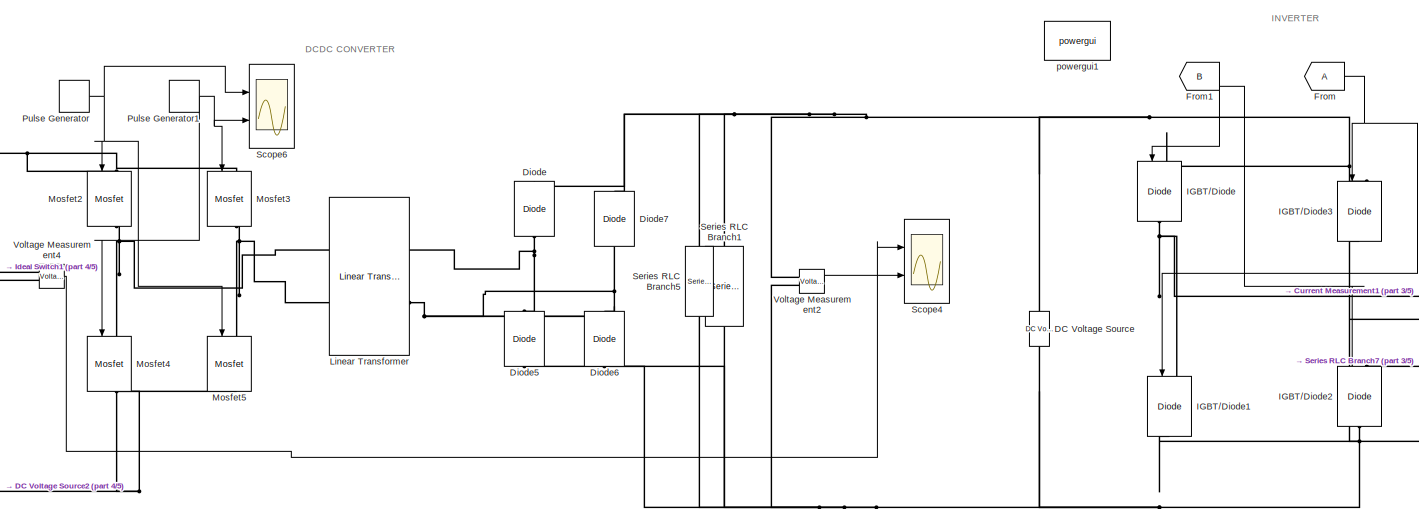
[diagram: root canvas - part 1/5, top center region]
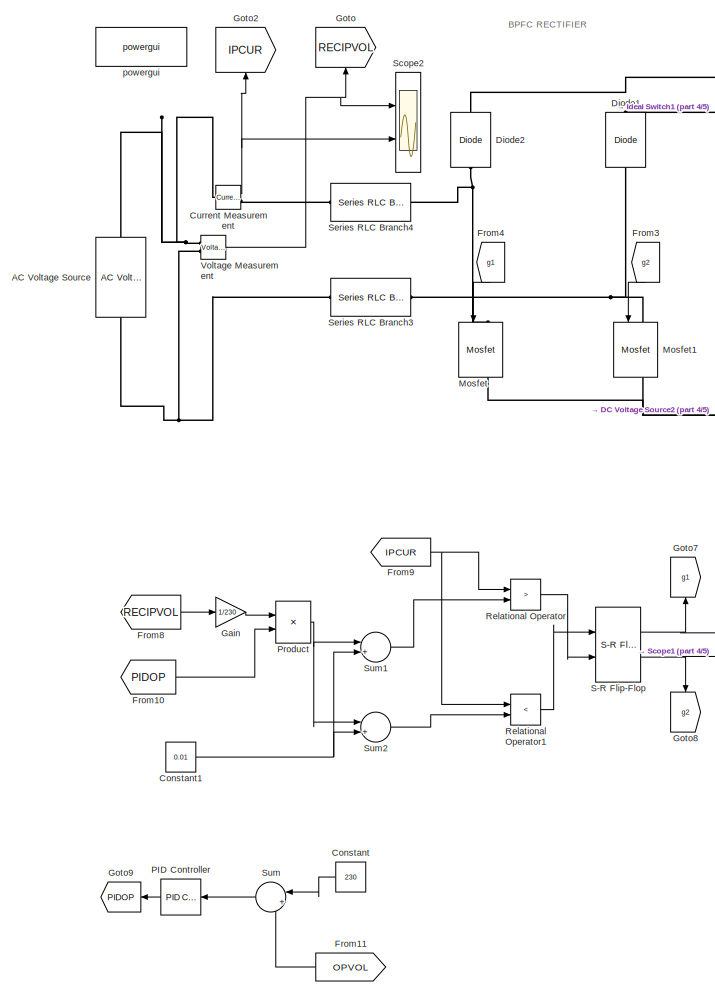
[diagram: root canvas - part 2/5, left side, full height]
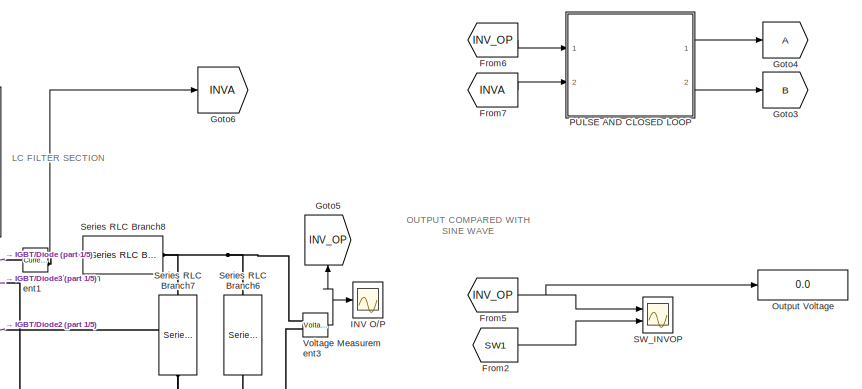
[diagram: root canvas - part 3/5, top right region]
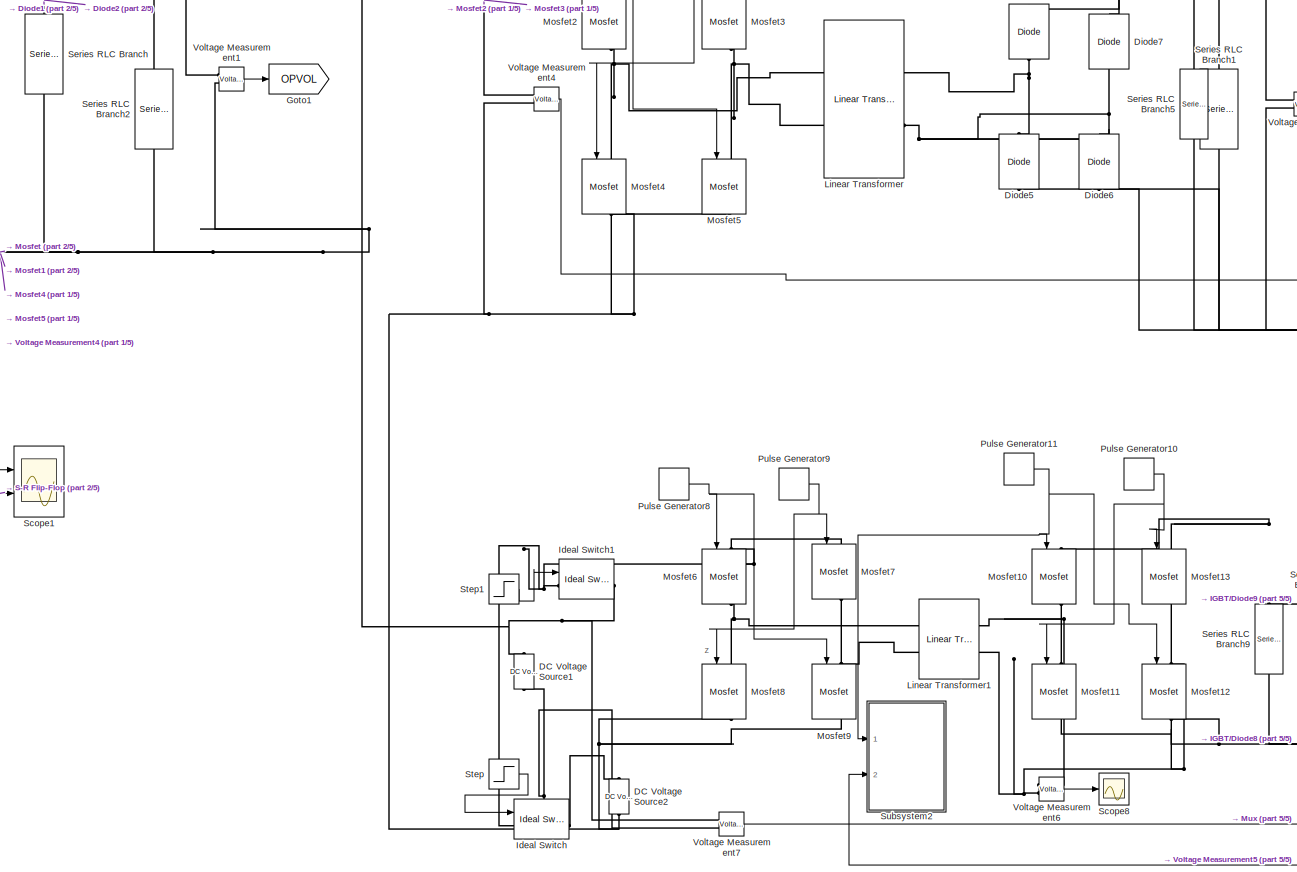
[diagram: root canvas - part 4/5, central region]
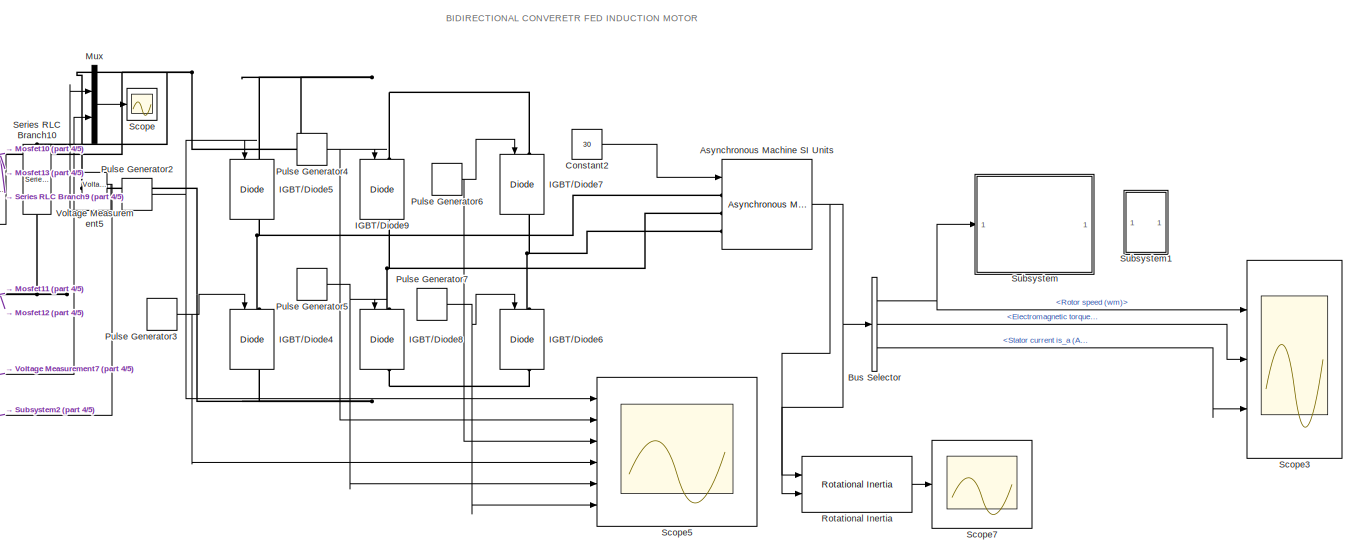
[diagram: root canvas - part 5/5, bottom right region]
MODEL slx_6d3afb806fe5
KIND model
CONFIG AbsTol = auto
CONFIG EnableMultiTasking = on
CONFIG FixedStep = auto
CONFIG MaxStep = auto
CONFIG MinStep = auto
CONFIG RelTol = 1e-3
CONFIG SampleTimeConstraint = Unconstrained
CONFIG Solver = ode23tb
CONFIG SolverName = ode23tb
CONFIG StartTime = 0.0
CONFIG StopTime = 1
BLOCK [Reference] AC Voltage Source  REF=powerlib/Electrical
Sources/AC Voltage Source
  Ports = [0, 0, 0, 0, 0, 1, 1]
  SourceBlock = powerlib/Electrical\nSources/AC Voltage Source
  SourceProductBaseCode = PS
  SourceProductName = Simscape Power Systems
  SourceType = AC Voltage Source
BLOCK [Reference] Asynchronous Machine SI Units  REF=powerlib/Machines/Asynchronous Machine
SI Units
  Ports = [1, 1, 0, 0, 0, 3]
  SourceBlock = powerlib/Machines/Asynchronous Machine\nSI Units
  SourceProductBaseCode = PS
  SourceProductName = Simscape Electrical
  SourceType = Asynchronous Machine
BLOCK [BusSelector] Bus Selector
  OutputAsBus = off
  OutputSignals = Mechanical.Rotor speed (wm),Mechanical.Electromagnetic torque Te (N*m),Stator measurements.Stator current is_a (A)
  Ports = [1, 3]
BLOCK [Constant] Constant
  Value = 230
BLOCK [Constant] Constant1
  Value = 0.01
BLOCK [Constant] Constant2
  Value = 30
BLOCK [Reference] Current Measurement  REF=powerlib/Measurements/Current Measurement
  Ports = [0, 1, 0, 0, 0, 1, 1]
  SourceBlock = powerlib/Measurements/Current Measurement
  SourceProductBaseCode = PS
  SourceProductName = Simscape Power Systems
  SourceType = Current Measurement
  UserDataPersistent = on
BLOCK [Reference] Current Measurement1  REF=powerlib/Measurements/Current Measurement
  Ports = [0, 1, 0, 0, 0, 1, 1]
  SourceBlock = powerlib/Measurements/Current Measurement
  SourceProductBaseCode = PS
  SourceProductName = Simscape Power Systems
  SourceType = Current Measurement
  UserDataPersistent = on
BLOCK [Reference] DC Voltage Source  REF=powerlib/Electrical
Sources/DC Voltage Source
  Ports = [0, 0, 0, 0, 0, 1, 1]
  SourceBlock = powerlib/Electrical\nSources/DC Voltage Source
  SourceProductBaseCode = PS
  SourceProductName = Simscape Power Systems
  SourceType = DC Voltage Source
BLOCK [Reference] DC Voltage Source1  REF=powerlib/Electrical
Sources/DC Voltage Source
  Ports = [0, 0, 0, 0, 0, 1, 1]
  SourceBlock = powerlib/Electrical\nSources/DC Voltage Source
  SourceProductBaseCode = PS
  SourceProductName = Simscape Electrical
  SourceType = DC Voltage Source
BLOCK [Reference] DC Voltage Source2  REF=powerlib/Electrical
Sources/DC Voltage Source
  Ports = [0, 0, 0, 0, 0, 1, 1]
  SourceBlock = powerlib/Electrical\nSources/DC Voltage Source
  SourceProductBaseCode = PS
  SourceProductName = Simscape Electrical
  SourceType = DC Voltage Source
BLOCK [Reference] Diode  REF=powerlib/Power
Electronics/Diode
  Ports = [0, 0, 0, 0, 0, 1, 1]
  SourceBlock = powerlib/Power\nElectronics/Diode
  SourceProductBaseCode = PS
  SourceProductName = Simscape Electrical
  SourceType = Diode
BLOCK [Reference] Diode1  REF=powerlib/Power
Electronics/Diode
  Ports = [0, 0, 0, 0, 0, 1, 1]
  SourceBlock = powerlib/Power\nElectronics/Diode
  SourceProductBaseCode = PS
  SourceProductName = Simscape Power Systems
  SourceType = Diode
BLOCK [Reference] Diode2  REF=powerlib/Power
Electronics/Diode
  Ports = [0, 0, 0, 0, 0, 1, 1]
  SourceBlock = powerlib/Power\nElectronics/Diode
  SourceProductBaseCode = PS
  SourceProductName = Simscape Power Systems
  SourceType = Diode
BLOCK [Reference] Diode5  REF=powerlib/Power
Electronics/Diode
  Ports = [0, 0, 0, 0, 0, 1, 1]
  SourceBlock = powerlib/Power\nElectronics/Diode
  SourceProductBaseCode = PS
  SourceProductName = Simscape Electrical
  SourceType = Diode
BLOCK [Reference] Diode6  REF=powerlib/Power
Electronics/Diode
  Ports = [0, 0, 0, 0, 0, 1, 1]
  SourceBlock = powerlib/Power\nElectronics/Diode
  SourceProductBaseCode = PS
  SourceProductName = Simscape Electrical
  SourceType = Diode
BLOCK [Reference] Diode7  REF=powerlib/Power
Electronics/Diode
  Ports = [0, 0, 0, 0, 0, 1, 1]
  SourceBlock = powerlib/Power\nElectronics/Diode
  SourceProductBaseCode = PS
  SourceProductName = Simscape Electrical
  SourceType = Diode
BLOCK [From] From
BLOCK [From] From1
  GotoTag = B
BLOCK [From] From10
  GotoTag = PIDOP
BLOCK [From] From11
  GotoTag = OPVOL
BLOCK [From] From2
  GotoTag = SW1
BLOCK [From] From3
  GotoTag = g2
BLOCK [From] From4
  GotoTag = g1
BLOCK [From] From5
  GotoTag = INV_OP
BLOCK [From] From6
  GotoTag = INV_OP
BLOCK [From] From7
  GotoTag = INVA
BLOCK [From] From8
  GotoTag = RECIPVOL
BLOCK [From] From9
  GotoTag = IPCUR
BLOCK [Gain] Gain
  Gain = 1/230
  OutDataTypeStr = Inherit: Inherit via internal rule
  ParamDataTypeStr = Inherit: Inherit via internal rule
  SaturateOnIntegerOverflow = off
BLOCK [Goto] Goto
  GotoTag = RECIPVOL
BLOCK [Goto] Goto1
  GotoTag = OPVOL
BLOCK [Goto] Goto2
  GotoTag = IPCUR
BLOCK [Goto] Goto3
  GotoTag = B
BLOCK [Goto] Goto4
BLOCK [Goto] Goto5
  GotoTag = INV_OP
BLOCK [Goto] Goto6
  GotoTag = INVA
BLOCK [Goto] Goto7
  GotoTag = g1
BLOCK [Goto] Goto8
  GotoTag = g2
BLOCK [Goto] Goto9
  GotoTag = PIDOP
BLOCK [Reference] IGBT//Diode  REF=powerlib/Power
Electronics/IGBT//Diode
  Ports = [1, 0, 0, 0, 0, 1, 1]
  SourceBlock = powerlib/Power\nElectronics/IGBT//Diode
  SourceProductBaseCode = PS
  SourceProductName = Simscape Power Systems
  SourceType = IGBT/Diode
BLOCK [Reference] IGBT//Diode1  REF=powerlib/Power
Electronics/IGBT//Diode
  Ports = [1, 0, 0, 0, 0, 1, 1]
  SourceBlock = powerlib/Power\nElectronics/IGBT//Diode
  SourceProductBaseCode = PS
  SourceProductName = Simscape Power Systems
  SourceType = IGBT/Diode
BLOCK [Reference] IGBT//Diode2  REF=powerlib/Power
Electronics/IGBT//Diode
  Ports = [1, 0, 0, 0, 0, 1, 1]
  SourceBlock = powerlib/Power\nElectronics/IGBT//Diode
  SourceProductBaseCode = PS
  SourceProductName = Simscape Power Systems
  SourceType = IGBT/Diode
BLOCK [Reference] IGBT//Diode3  REF=powerlib/Power
Electronics/IGBT//Diode
  Ports = [1, 0, 0, 0, 0, 1, 1]
  SourceBlock = powerlib/Power\nElectronics/IGBT//Diode
  SourceProductBaseCode = PS
  SourceProductName = Simscape Power Systems
  SourceType = IGBT/Diode
BLOCK [Reference] IGBT//Diode4  REF=powerlib/Power
Electronics/IGBT//Diode
  Ports = [1, 1, 0, 0, 0, 1, 1]
  SourceBlock = powerlib/Power\nElectronics/IGBT//Diode
  SourceProductBaseCode = PS
  SourceProductName = Simscape Electrical
  SourceType = IGBT/Diode
BLOCK [Reference] IGBT//Diode5  REF=powerlib/Power
Electronics/IGBT//Diode
  Ports = [1, 1, 0, 0, 0, 1, 1]
  SourceBlock = powerlib/Power\nElectronics/IGBT//Diode
  SourceProductBaseCode = PS
  SourceProductName = Simscape Electrical
  SourceType = IGBT/Diode
BLOCK [Reference] IGBT//Diode6  REF=powerlib/Power
Electronics/IGBT//Diode
  Ports = [1, 1, 0, 0, 0, 1, 1]
  SourceBlock = powerlib/Power\nElectronics/IGBT//Diode
  SourceProductBaseCode = PS
  SourceProductName = Simscape Electrical
  SourceType = IGBT/Diode
BLOCK [Reference] IGBT//Diode7  REF=powerlib/Power
Electronics/IGBT//Diode
  Ports = [1, 1, 0, 0, 0, 1, 1]
  SourceBlock = powerlib/Power\nElectronics/IGBT//Diode
  SourceProductBaseCode = PS
  SourceProductName = Simscape Electrical
  SourceType = IGBT/Diode
BLOCK [Reference] IGBT//Diode8  REF=powerlib/Power
Electronics/IGBT//Diode
  Ports = [1, 1, 0, 0, 0, 1, 1]
  SourceBlock = powerlib/Power\nElectronics/IGBT//Diode
  SourceProductBaseCode = PS
  SourceProductName = Simscape Electrical
  SourceType = IGBT/Diode
BLOCK [Reference] IGBT//Diode9  REF=powerlib/Power
Electronics/IGBT//Diode
  Ports = [1, 1, 0, 0, 0, 1, 1]
  SourceBlock = powerlib/Power\nElectronics/IGBT//Diode
  SourceProductBaseCode = PS
  SourceProductName = Simscape Electrical
  SourceType = IGBT/Diode
BLOCK [Scope] INV O//P
  Floating = off
  NumInputPorts = 1
  Ports = [1]
  ScopeSpecificationString = Simulink.scopes.TimeScopeBlockCfg('CurrentConfiguration', extmgr.ConfigurationSet(extmgr.Configuration('Core','General UI',true),extmgr.Configuration('Core','Source UI',true),extmgr.Configuration('Sources','WiredSimulink',true,'DataLoggingVariableName','ScopeData1','DataLoggingSaveFormat','Array','DataLoggingDecimation','1','DataLoggingDecimateData',true),extmgr.Configuration('Visuals','Time Domai...<+1589ch>
BLOCK [Reference] Ideal Switch  REF=powerlib/Power
Electronics/Ideal Switch
  Ports = [1, 1, 0, 0, 0, 1, 1]
  SourceBlock = powerlib/Power\nElectronics/Ideal Switch
  SourceProductBaseCode = PS
  SourceProductName = Simscape Electrical
  SourceType = Ideal Switch
BLOCK [Reference] Ideal Switch1  REF=powerlib/Power
Electronics/Ideal Switch
  Ports = [1, 1, 0, 0, 0, 1, 1]
  SourceBlock = powerlib/Power\nElectronics/Ideal Switch
  SourceProductBaseCode = PS
  SourceProductName = Simscape Electrical
  SourceType = Ideal Switch
BLOCK [Reference] Linear Transformer  REF=powerlib/Elements/Linear Transformer
  Ports = [0, 0, 0, 0, 0, 2, 2]
  SourceBlock = powerlib/Elements/Linear Transformer
  SourceProductBaseCode = PS
  SourceProductName = Simscape Electrical
  SourceType = Linear Transformer
BLOCK [Reference] Linear Transformer1  REF=powerlib/Elements/Linear Transformer
  Ports = [0, 0, 0, 0, 0, 2, 2]
  SourceBlock = powerlib/Elements/Linear Transformer
  SourceProductBaseCode = PS
  SourceProductName = Simscape Electrical
  SourceType = Linear Transformer
BLOCK [Reference] Mosfet  REF=powerlib/Power
Electronics/Mosfet
  Ports = [1, 1, 0, 0, 0, 1, 1]
  SourceBlock = powerlib/Power\nElectronics/Mosfet
  SourceProductBaseCode = PS
  SourceProductName = Simscape Power Systems
  SourceType = Mosfet
BLOCK [Reference] Mosfet1  REF=powerlib/Power
Electronics/Mosfet
  Ports = [1, 1, 0, 0, 0, 1, 1]
  SourceBlock = powerlib/Power\nElectronics/Mosfet
  SourceProductBaseCode = PS
  SourceProductName = Simscape Power Systems
  SourceType = Mosfet
BLOCK [Reference] Mosfet10  REF=powerlib/Power
Electronics/Mosfet
  Ports = [1, 1, 0, 0, 0, 1, 1]
  SourceBlock = powerlib/Power\nElectronics/Mosfet
  SourceProductBaseCode = PS
  SourceProductName = Simscape Electrical
  SourceType = Mosfet
BLOCK [Reference] Mosfet11  REF=powerlib/Power
Electronics/Mosfet
  Ports = [1, 1, 0, 0, 0, 1, 1]
  SourceBlock = powerlib/Power\nElectronics/Mosfet
  SourceProductBaseCode = PS
  SourceProductName = Simscape Electrical
  SourceType = Mosfet
BLOCK [Reference] Mosfet12  REF=powerlib/Power
Electronics/Mosfet
  Ports = [1, 1, 0, 0, 0, 1, 1]
  SourceBlock = powerlib/Power\nElectronics/Mosfet
  SourceProductBaseCode = PS
  SourceProductName = Simscape Electrical
  SourceType = Mosfet
BLOCK [Reference] Mosfet13  REF=powerlib/Power
Electronics/Mosfet
  Ports = [1, 1, 0, 0, 0, 1, 1]
  SourceBlock = powerlib/Power\nElectronics/Mosfet
  SourceProductBaseCode = PS
  SourceProductName = Simscape Electrical
  SourceType = Mosfet
BLOCK [Reference] Mosfet2  REF=powerlib/Power
Electronics/Mosfet
  Ports = [1, 1, 0, 0, 0, 1, 1]
  SourceBlock = powerlib/Power\nElectronics/Mosfet
  SourceProductBaseCode = PS
  SourceProductName = Simscape Electrical
  SourceType = Mosfet
BLOCK [Reference] Mosfet3  REF=powerlib/Power
Electronics/Mosfet
  Ports = [1, 1, 0, 0, 0, 1, 1]
  SourceBlock = powerlib/Power\nElectronics/Mosfet
  SourceProductBaseCode = PS
  SourceProductName = Simscape Electrical
  SourceType = Mosfet
BLOCK [Reference] Mosfet4  REF=powerlib/Power
Electronics/Mosfet
  Ports = [1, 1, 0, 0, 0, 1, 1]
  SourceBlock = powerlib/Power\nElectronics/Mosfet
  SourceProductBaseCode = PS
  SourceProductName = Simscape Electrical
  SourceType = Mosfet
BLOCK [Reference] Mosfet5  REF=powerlib/Power
Electronics/Mosfet
  Ports = [1, 1, 0, 0, 0, 1, 1]
  SourceBlock = powerlib/Power\nElectronics/Mosfet
  SourceProductBaseCode = PS
  SourceProductName = Simscape Electrical
  SourceType = Mosfet
BLOCK [Reference] Mosfet6  REF=powerlib/Power
Electronics/Mosfet
  Ports = [1, 1, 0, 0, 0, 1, 1]
  SourceBlock = powerlib/Power\nElectronics/Mosfet
  SourceProductBaseCode = PS
  SourceProductName = Simscape Electrical
  SourceType = Mosfet
BLOCK [Reference] Mosfet7  REF=powerlib/Power
Electronics/Mosfet
  Ports = [1, 1, 0, 0, 0, 1, 1]
  SourceBlock = powerlib/Power\nElectronics/Mosfet
  SourceProductBaseCode = PS
  SourceProductName = Simscape Electrical
  SourceType = Mosfet
BLOCK [Reference] Mosfet8  REF=powerlib/Power
Electronics/Mosfet
  Ports = [1, 1, 0, 0, 0, 1, 1]
  SourceBlock = powerlib/Power\nElectronics/Mosfet
  SourceProductBaseCode = PS
  SourceProductName = Simscape Electrical
  SourceType = Mosfet
BLOCK [Reference] Mosfet9  REF=powerlib/Power
Electronics/Mosfet
  Ports = [1, 1, 0, 0, 0, 1, 1]
  SourceBlock = powerlib/Power\nElectronics/Mosfet
  SourceProductBaseCode = PS
  SourceProductName = Simscape Electrical
  SourceType = Mosfet
BLOCK [Mux] Mux
  DisplayOption = bar
  Inputs = 2
  Ports = [2, 1]
BLOCK [Display] Output Voltage
  Decimation = 1
  Ports = [1]
BLOCK [Reference] PID Controller  REF=simulink/Continuous/PID Controller
  Ports = [1, 1]
  SourceBlock = simulink/Continuous/PID Controller
  SourceProductBaseCode = SL
  SourceProductName = Simulink
  SourceType = PID 1dof
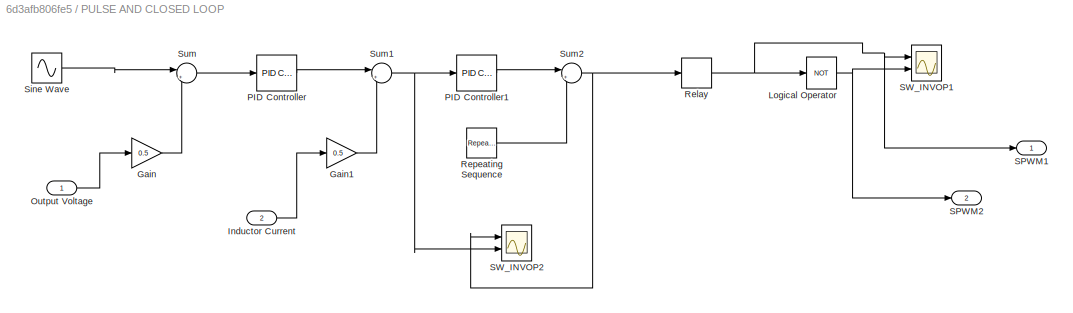
BLOCK [SubSystem] PULSE AND CLOSED LOOP
  Ports = [2, 2]
  RequestExecContextInheritance = off
BLOCK [Gain] PULSE AND CLOSED LOOP/Gain
  Gain = 0.5
  OutDataTypeStr = Inherit: Inherit via internal rule
  ParamDataTypeStr = Inherit: Inherit via internal rule
  SaturateOnIntegerOverflow = off
BLOCK [Gain] PULSE AND CLOSED LOOP/Gain1
  Gain = 0.5
  OutDataTypeStr = Inherit: Inherit via internal rule
  ParamDataTypeStr = Inherit: Inherit via internal rule
  SaturateOnIntegerOverflow = off
BLOCK [Inport] PULSE AND CLOSED LOOP/Inductor Current
  IconDisplay = Port number
  Port = 2
BLOCK [Logic] PULSE AND CLOSED LOOP/Logical Operator
  AllPortsSameDT = off
  Operator = NOT
  OutDataTypeStr = boolean
  Ports = [1, 1]
BLOCK [Inport] PULSE AND CLOSED LOOP/Output Voltage 
  IconDisplay = Port number
BLOCK [Reference] PULSE AND CLOSED LOOP/PID Controller  REF=simulink/Continuous/PID Controller
  Ports = [1, 1]
  SourceBlock = simulink/Continuous/PID Controller
  SourceProductBaseCode = SL
  SourceProductName = Simulink
  SourceType = PID 1dof
BLOCK [Reference] PULSE AND CLOSED LOOP/PID Controller1  REF=simulink/Continuous/PID Controller
  Ports = [1, 1]
  SourceBlock = simulink/Continuous/PID Controller
  SourceProductBaseCode = SL
  SourceProductName = Simulink
  SourceType = PID 1dof
BLOCK [Relay] PULSE AND CLOSED LOOP/Relay
  InputProcessing = Elements as channels (sample based)
BLOCK [Reference] PULSE AND CLOSED LOOP/Repeating Sequence  REF=simulink/Sources/Repeating
Sequence
  Ports = [0, 1]
  SourceBlock = simulink/Sources/Repeating\nSequence
  SourceProductBaseCode = SL
  SourceProductName = Simulink
  SourceType = Repeating table
BLOCK [Outport] PULSE AND CLOSED LOOP/SPWM1
  IconDisplay = Port number
BLOCK [Outport] PULSE AND CLOSED LOOP/SPWM2
  IconDisplay = Port number
  Port = 2
BLOCK [Scope] PULSE AND CLOSED LOOP/SW_INVOP1
  Floating = off
  NumInputPorts = 2
  Ports = [2]
  ScopeSpecificationString = Simulink.scopes.TimeScopeBlockCfg('CurrentConfiguration', extmgr.ConfigurationSet(extmgr.Configuration('Core','General UI',true),extmgr.Configuration('Core','Source UI',true),extmgr.Configuration('Sources','WiredSimulink',true,'DataLoggingVariableName','ScopeData5','DataLoggingSaveFormat','Array','DataLoggingDecimation','1','DataLoggingDecimateData',true),extmgr.Configuration('Visuals','Time Domai...<+2302ch>
BLOCK [Scope] PULSE AND CLOSED LOOP/SW_INVOP2
  Floating = off
  NumInputPorts = 2
  Ports = [2]
  ScopeSpecificationString = Simulink.scopes.TimeScopeBlockCfg('CurrentConfiguration', extmgr.ConfigurationSet(extmgr.Configuration('Core','General UI',true),extmgr.Configuration('Core','Source UI',true),extmgr.Configuration('Sources','WiredSimulink',true,'DataLoggingSaveFormat','Array','DataLoggingDecimation','1','DataLoggingDecimateData',true),extmgr.Configuration('Visuals','Time Domain',true,'SerializedDisplays',{struct('M...<+2308ch>
BLOCK [Sin] PULSE AND CLOSED LOOP/Sine Wave
  Amplitude = 130
  Frequency = 2*pi*50
  Ports = [0, 1]
  SampleTime = 0
BLOCK [Sum] PULSE AND CLOSED LOOP/Sum
  IconShape = round
  InputSameDT = off
  Inputs = |+-
  OutDataTypeStr = Inherit: Inherit via internal rule
  Ports = [2, 1]
  SaturateOnIntegerOverflow = off
BLOCK [Sum] PULSE AND CLOSED LOOP/Sum1
  IconShape = round
  InputSameDT = off
  Inputs = |+-
  OutDataTypeStr = Inherit: Inherit via internal rule
  Ports = [2, 1]
  SaturateOnIntegerOverflow = off
BLOCK [Sum] PULSE AND CLOSED LOOP/Sum2
  IconShape = round
  InputSameDT = off
  Inputs = |+-
  OutDataTypeStr = Inherit: Inherit via internal rule
  Ports = [2, 1]
  SaturateOnIntegerOverflow = off
BLOCK [Product] Product
  InputSameDT = off
  OutDataTypeStr = Inherit: Inherit via internal rule
  Ports = [2, 1]
  RndMeth = Floor
  SaturateOnIntegerOverflow = off
BLOCK [DiscretePulseGenerator] Pulse Generator
  Period = .00002
  Ports = [0, 1]
  PulseType = Time based
  PulseWidth = 50
  VectorParams1D = off
BLOCK [DiscretePulseGenerator] Pulse Generator1
  Period = .00002
  PhaseDelay = 2.22e-10
  Ports = [0, 1]
  PulseType = Time based
  PulseWidth = 50
  VectorParams1D = off
BLOCK [DiscretePulseGenerator] Pulse Generator10
  Amplitude = 5
  Period = 50e-6
  PhaseDelay = 25e-6
  Ports = [0, 1]
  PulseType = Time based
  PulseWidth = 50
BLOCK [DiscretePulseGenerator] Pulse Generator11
  Amplitude = 5
  Period = 50e-6
  Ports = [0, 1]
  PulseType = Time based
  PulseWidth = 50
BLOCK [DiscretePulseGenerator] Pulse Generator2
  Period = .02
  Ports = [0, 1]
  PulseType = Time based
  PulseWidth = 33
BLOCK [DiscretePulseGenerator] Pulse Generator3
  Period = .02
  PhaseDelay = .01
  Ports = [0, 1]
  PulseType = Time based
  PulseWidth = 33
BLOCK [DiscretePulseGenerator] Pulse Generator4
  Period = .02
  PhaseDelay = .0066
  Ports = [0, 1]
  PulseType = Time based
  PulseWidth = 33
BLOCK [DiscretePulseGenerator] Pulse Generator5
  Period = .02
  PhaseDelay = .0166
  Ports = [0, 1]
  PulseType = Time based
  PulseWidth = 33
BLOCK [DiscretePulseGenerator] Pulse Generator6
  Period = .02
  PhaseDelay = .0133
  Ports = [0, 1]
  PulseType = Time based
  PulseWidth = 33
BLOCK [DiscretePulseGenerator] Pulse Generator7
  Period = .02
  PhaseDelay = .0033
  Ports = [0, 1]
  PulseType = Time based
  PulseWidth = 33
BLOCK [DiscretePulseGenerator] Pulse Generator8
  Amplitude = 5
  Period = 50e-6
  Ports = [0, 1]
  PulseType = Time based
  PulseWidth = 50
BLOCK [DiscretePulseGenerator] Pulse Generator9
  Amplitude = 5
  Period = 50e-6
  PhaseDelay = 25e-6
  Ports = [0, 1]
  PulseType = Time based
  PulseWidth = 50
BLOCK [RelationalOperator] Relational Operator
  InputSameDT = off
  Operator = >
  OutDataTypeStr = boolean
  Ports = [2, 1]
BLOCK [RelationalOperator] Relational Operator1
  InputSameDT = off
  Operator = <
  OutDataTypeStr = boolean
  Ports = [2, 1]
BLOCK [Reference] Rotational Inertia  REF=autolibcoupling/Rotational Inertia
  Ports = [2, 1]
  SourceBlock = autolibcoupling/Rotational Inertia
  SourceProductBaseCode = PW
  SourceProductName = Powertrain Blockset
  SourceType = Rotational Inertia
BLOCK [Reference] S-R Flip-Flop  REF=simulink_extras/Flip Flops/S-R
Flip-Flop
  Ports = [2, 2]
  SourceBlock = simulink_extras/Flip Flops/S-R\nFlip-Flop
  SourceProductBaseCode = SL
  SourceProductName = Simulink
  SourceType = SRFlipFlop
BLOCK [Scope] SW_INVOP
  Floating = off
  NumInputPorts = 2
  Ports = [2]
  ScopeSpecificationString = Simulink.scopes.TimeScopeBlockCfg('CurrentConfiguration', extmgr.ConfigurationSet(extmgr.Configuration('Core','General UI',true),extmgr.Configuration('Core','Source UI',true),extmgr.Configuration('Sources','WiredSimulink',true,'DataLoggingVariableName','ScopeData4','DataLoggingSaveFormat','Array','DataLoggingDecimation','1','DataLoggingDecimateData',true),extmgr.Configuration('Visuals','Time Domai...<+2302ch>
BLOCK [Scope] Scope
  Floating = off
  NumInputPorts = 1
  Ports = [1]
  ScopeSpecificationString = Simulink.scopes.TimeScopeBlockCfg('CurrentConfiguration', extmgr.ConfigurationSet(extmgr.Configuration('Core','General UI',true,'FigureColor',[1 1 1]),extmgr.Configuration('Core','Source UI',true),extmgr.Configuration('Sources','WiredSimulink',true,'DataLoggingSaveFormat','StructureWithTime','DataLoggingDecimation','20','DataLoggingDecimateData',true,'DataLoggingVariableName','ScopeData6'),extmgr....<+1840ch>
BLOCK [Scope] Scope1
  Floating = off
  NumInputPorts = 2
  Ports = [2]
  ScopeSpecificationString = Simulink.scopes.TimeScopeBlockCfg('CurrentConfiguration', extmgr.ConfigurationSet(extmgr.Configuration('Core','General UI',true),extmgr.Configuration('Core','Source UI',true),extmgr.Configuration('Sources','WiredSimulink',true,'DataLoggingVariableName','ScopeData3','DataLoggingLimitDataPoints',true,'DataLoggingSaveFormat','Array','DataLoggingDecimation','1','DataLoggingDecimateData',true),extmgr.C...<+2403ch>
BLOCK [Scope] Scope2
  Floating = off
  NumInputPorts = 2
  Ports = [2]
  ScopeSpecificationString = Simulink.scopes.TimeScopeBlockCfg('CurrentConfiguration', extmgr.ConfigurationSet(extmgr.Configuration('Core','General UI',true),extmgr.Configuration('Core','Source UI',true),extmgr.Configuration('Sources','WiredSimulink',true,'DataLoggingVariableName','ScopeData2','DataLoggingLimitDataPoints',true,'DataLoggingSaveFormat','Array','DataLoggingDecimation','1','DataLoggingDecimateData',true),extmgr.C...<+2403ch>
BLOCK [Scope] Scope3
  Floating = off
  NumInputPorts = 3
  Ports = [3]
  ScopeSpecificationString = Simulink.scopes.TimeScopeBlockCfg('CurrentConfiguration', extmgr.ConfigurationSet(extmgr.Configuration('Core','General UI',true),extmgr.Configuration('Core','Source UI',true),extmgr.Configuration('Sources','WiredSimulink',true,'DataLoggingVariableName','ScopeData7'),extmgr.Configuration('Visuals','Time Domain',true,'TimeAxisLabels','All','SerializedDisplays',{struct('MinYLimReal','-3915.63561','Ma...<+2863ch>
BLOCK [Scope] Scope4
  Floating = off
  NumInputPorts = 2
  Ports = [2]
  ScopeSpecificationString = Simulink.scopes.TimeScopeBlockCfg('CurrentConfiguration', extmgr.ConfigurationSet(extmgr.Configuration('Core','General UI',true,'FigureColor',[0 0 0]),extmgr.Configuration('Core','Source UI',true),extmgr.Configuration('Sources','WiredSimulink',true,'DataLoggingVariableName','ScopeData4','DataLoggingSaveFormat','StructureWithTime','DataLoggingDecimation','20','DataLoggingDecimateData',true),extmgr....<+3852ch>
BLOCK [Scope] Scope5
  Floating = off
  NumInputPorts = 6
  Ports = [6]
  ScopeSpecificationString = Simulink.scopes.TimeScopeBlockCfg('CurrentConfiguration', extmgr.ConfigurationSet(extmgr.Configuration('Core','General UI',true),extmgr.Configuration('Core','Source UI',true),extmgr.Configuration('Sources','WiredSimulink',true,'DataLoggingVariableName','ScopeData8'),extmgr.Configuration('Visuals','Time Domain',true,'TimeAxisLabels','All','SerializedDisplays',{struct('MinYLimReal','-0.125','MaxYLim...<+4921ch>
BLOCK [Scope] Scope6
  Floating = off
  NumInputPorts = 2
  Ports = [2]
  ScopeSpecificationString = Simulink.scopes.TimeScopeBlockCfg('CurrentConfiguration', extmgr.ConfigurationSet(extmgr.Configuration('Core','General UI',true,'FigureColor',[0 0 0]),extmgr.Configuration('Core','Source UI',true),extmgr.Configuration('Sources','WiredSimulink',true,'DataLoggingVariableName','ScopeData6','DataLoggingSaveFormat','StructureWithTime','DataLoggingDecimation','20','DataLoggingDecimateData',true),extmgr....<+3745ch>
BLOCK [Scope] Scope7
  Floating = off
  NumInputPorts = 1
  Ports = [1]
  ScopeSpecificationString = Simulink.scopes.TimeScopeBlockCfg('CurrentConfiguration', extmgr.ConfigurationSet(extmgr.Configuration('Core','General UI',true),extmgr.Configuration('Core','Source UI',true),extmgr.Configuration('Sources','WiredSimulink',true,'DataLoggingVariableName','ScopeData9'),extmgr.Configuration('Visuals','Time Domain',true,'TimeAxisLabels','All','SerializedDisplays',{struct('MinYLimReal','-135617.67705','...<+3306ch>
BLOCK [Scope] Scope8
  Floating = off
  NumInputPorts = 1
  Ports = [1]
  ScopeSpecificationString = Simulink.scopes.TimeScopeBlockCfg('CurrentConfiguration', extmgr.ConfigurationSet(extmgr.Configuration('Core','General UI',true),extmgr.Configuration('Core','Source UI',true),extmgr.Configuration('Sources','WiredSimulink',true,'DataLoggingVariableName','ScopeData10','DataLoggingSaveFormat','StructureWithTime','DataLoggingDecimation','20','DataLoggingDecimateData',true),extmgr.Configuration('Visual...<+1610ch>
BLOCK [Reference] Series RLC Branch  REF=powerlib/Elements/Series RLC Branch
  Ports = [0, 0, 0, 0, 0, 1, 1]
  SourceBlock = powerlib/Elements/Series RLC Branch
  SourceProductBaseCode = PS
  SourceProductName = Simscape Power Systems
  SourceType = Series RLC Branch
BLOCK [Reference] Series RLC Branch1  REF=powerlib/Elements/Series RLC Branch
  Ports = [0, 0, 0, 0, 0, 1, 1]
  SourceBlock = powerlib/Elements/Series RLC Branch
  SourceProductBaseCode = PS
  SourceProductName = Simscape Power Systems
  SourceType = Series RLC Branch
BLOCK [Reference] Series RLC Branch10  REF=powerlib/Elements/Series RLC Branch
  Ports = [0, 0, 0, 0, 0, 1, 1]
  SourceBlock = powerlib/Elements/Series RLC Branch
  SourceProductBaseCode = PS
  SourceProductName = Simscape Electrical
  SourceType = Series RLC Branch
BLOCK [Reference] Series RLC Branch2  REF=powerlib/Elements/Series RLC Branch
  Ports = [0, 0, 0, 0, 0, 1, 1]
  SourceBlock = powerlib/Elements/Series RLC Branch
  SourceProductBaseCode = PS
  SourceProductName = Simscape Power Systems
  SourceType = Series RLC Branch
BLOCK [Reference] Series RLC Branch3  REF=powerlib/Elements/Series RLC Branch
  Ports = [0, 0, 0, 0, 0, 1, 1]
  SourceBlock = powerlib/Elements/Series RLC Branch
  SourceProductBaseCode = PS
  SourceProductName = Simscape Power Systems
  SourceType = Series RLC Branch
BLOCK [Reference] Series RLC Branch4  REF=powerlib/Elements/Series RLC Branch
  Ports = [0, 0, 0, 0, 0, 1, 1]
  SourceBlock = powerlib/Elements/Series RLC Branch
  SourceProductBaseCode = PS
  SourceProductName = Simscape Power Systems
  SourceType = Series RLC Branch
BLOCK [Reference] Series RLC Branch5  REF=powerlib/Elements/Series RLC Branch
  Ports = [0, 0, 0, 0, 0, 1, 1]
  SourceBlock = powerlib/Elements/Series RLC Branch
  SourceProductBaseCode = PS
  SourceProductName = Simscape Electrical
  SourceType = Series RLC Branch
BLOCK [Reference] Series RLC Branch6  REF=powerlib/Elements/Series RLC Branch
  Ports = [0, 0, 0, 0, 0, 1, 1]
  SourceBlock = powerlib/Elements/Series RLC Branch
  SourceProductBaseCode = PS
  SourceProductName = Simscape Power Systems
  SourceType = Series RLC Branch
BLOCK [Reference] Series RLC Branch7  REF=powerlib/Elements/Series RLC Branch
  Ports = [0, 0, 0, 0, 0, 1, 1]
  SourceBlock = powerlib/Elements/Series RLC Branch
  SourceProductBaseCode = PS
  SourceProductName = Simscape Power Systems
  SourceType = Series RLC Branch
BLOCK [Reference] Series RLC Branch8  REF=powerlib/Elements/Series RLC Branch
  Ports = [0, 0, 0, 0, 0, 1, 1]
  SourceBlock = powerlib/Elements/Series RLC Branch
  SourceProductBaseCode = PS
  SourceProductName = Simscape Power Systems
  SourceType = Series RLC Branch
BLOCK [Reference] Series RLC Branch9  REF=powerlib/Elements/Series RLC Branch
  Ports = [0, 0, 0, 0, 0, 1, 1]
  SourceBlock = powerlib/Elements/Series RLC Branch
  SourceProductBaseCode = PS
  SourceProductName = Simscape Electrical
  SourceType = Series RLC Branch
BLOCK [Step] Step
  SampleTime = 0
  Time = 0.05
BLOCK [Step] Step1
  After = 0
  Before = 1
  SampleTime = 0
  Time = 0.05
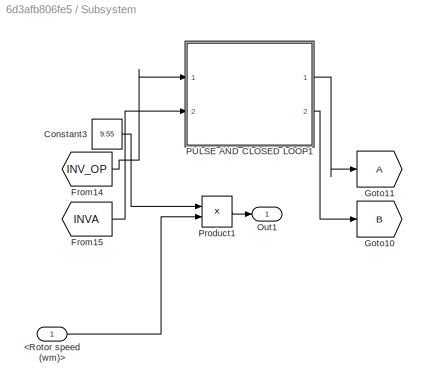
BLOCK [SubSystem] Subsystem
  Ports = [1, 1]
  RequestExecContextInheritance = off
BLOCK [Inport] Subsystem/<Rotor speed (wm)>
  IconDisplay = Port number
BLOCK [Constant] Subsystem/Constant3
  Value = 9.55
BLOCK [From] Subsystem/From14
  GotoTag = INV_OP
BLOCK [From] Subsystem/From15
  GotoTag = INVA
BLOCK [Goto] Subsystem/Goto10
  GotoTag = B
BLOCK [Goto] Subsystem/Goto11
BLOCK [Outport] Subsystem/Out1
  IconDisplay = Port number
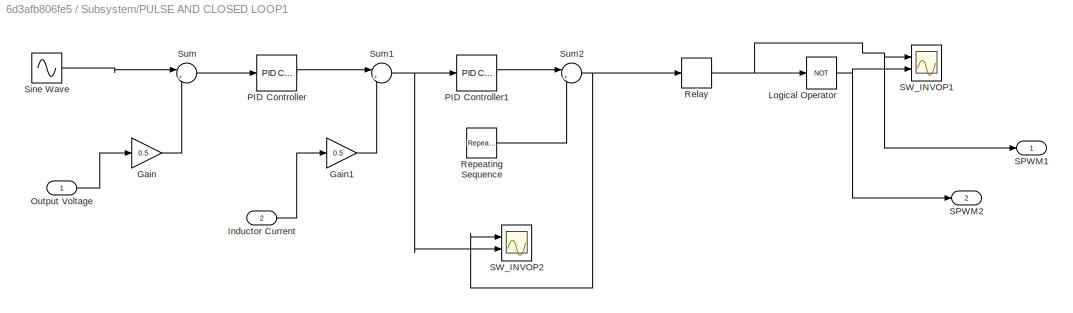
BLOCK [SubSystem] Subsystem/PULSE AND CLOSED LOOP1
  Ports = [2, 2]
  RequestExecContextInheritance = off
BLOCK [Gain] Subsystem/PULSE AND CLOSED LOOP1/Gain
  Gain = 0.5
  OutDataTypeStr = Inherit: Inherit via internal rule
  ParamDataTypeStr = Inherit: Inherit via internal rule
  SaturateOnIntegerOverflow = off
BLOCK [Gain] Subsystem/PULSE AND CLOSED LOOP1/Gain1
  Gain = 0.5
  OutDataTypeStr = Inherit: Inherit via internal rule
  ParamDataTypeStr = Inherit: Inherit via internal rule
  SaturateOnIntegerOverflow = off
BLOCK [Inport] Subsystem/PULSE AND CLOSED LOOP1/Inductor Current
  IconDisplay = Port number
  Port = 2
BLOCK [Logic] Subsystem/PULSE AND CLOSED LOOP1/Logical Operator
  AllPortsSameDT = off
  Operator = NOT
  OutDataTypeStr = boolean
  Ports = [1, 1]
BLOCK [Inport] Subsystem/PULSE AND CLOSED LOOP1/Output Voltage 
  IconDisplay = Port number
BLOCK [Reference] Subsystem/PULSE AND CLOSED LOOP1/PID Controller  REF=simulink/Continuous/PID Controller
  Ports = [1, 1]
  SourceBlock = simulink/Continuous/PID Controller
  SourceProductBaseCode = SL
  SourceProductName = Simulink
  SourceType = PID 1dof
BLOCK [Reference] Subsystem/PULSE AND CLOSED LOOP1/PID Controller1  REF=simulink/Continuous/PID Controller
  Ports = [1, 1]
  SourceBlock = simulink/Continuous/PID Controller
  SourceProductBaseCode = SL
  SourceProductName = Simulink
  SourceType = PID 1dof
BLOCK [Relay] Subsystem/PULSE AND CLOSED LOOP1/Relay
  InputProcessing = Elements as channels (sample based)
BLOCK [Reference] Subsystem/PULSE AND CLOSED LOOP1/Repeating Sequence  REF=simulink/Sources/Repeating
Sequence
  Ports = [0, 1]
  SourceBlock = simulink/Sources/Repeating\nSequence
  SourceProductBaseCode = SL
  SourceProductName = Simulink
  SourceType = Repeating table
BLOCK [Outport] Subsystem/PULSE AND CLOSED LOOP1/SPWM1
  IconDisplay = Port number
BLOCK [Outport] Subsystem/PULSE AND CLOSED LOOP1/SPWM2
  IconDisplay = Port number
  Port = 2
BLOCK [Scope] Subsystem/PULSE AND CLOSED LOOP1/SW_INVOP1
  Floating = off
  NumInputPorts = 2
  Ports = [2]
  ScopeSpecificationString = Simulink.scopes.TimeScopeBlockCfg('CurrentConfiguration', extmgr.ConfigurationSet(extmgr.Configuration('Core','General UI',true),extmgr.Configuration('Core','Source UI',true),extmgr.Configuration('Sources','WiredSimulink',true,'DataLoggingVariableName','ScopeData5','DataLoggingSaveFormat','Array','DataLoggingDecimation','1','DataLoggingDecimateData',true),extmgr.Configuration('Visuals','Time Domai...<+2302ch>
BLOCK [Scope] Subsystem/PULSE AND CLOSED LOOP1/SW_INVOP2
  Floating = off
  NumInputPorts = 2
  Ports = [2]
  ScopeSpecificationString = Simulink.scopes.TimeScopeBlockCfg('CurrentConfiguration', extmgr.ConfigurationSet(extmgr.Configuration('Core','General UI',true),extmgr.Configuration('Core','Source UI',true),extmgr.Configuration('Sources','WiredSimulink',true,'DataLoggingSaveFormat','Array','DataLoggingDecimation','1','DataLoggingDecimateData',true),extmgr.Configuration('Visuals','Time Domain',true,'SerializedDisplays',{struct('M...<+2308ch>
BLOCK [Sin] Subsystem/PULSE AND CLOSED LOOP1/Sine Wave
  Amplitude = 130
  Frequency = 2*pi*50
  Ports = [0, 1]
  SampleTime = 0
BLOCK [Sum] Subsystem/PULSE AND CLOSED LOOP1/Sum
  IconShape = round
  InputSameDT = off
  Inputs = |+-
  OutDataTypeStr = Inherit: Inherit via internal rule
  Ports = [2, 1]
  SaturateOnIntegerOverflow = off
BLOCK [Sum] Subsystem/PULSE AND CLOSED LOOP1/Sum1
  IconShape = round
  InputSameDT = off
  Inputs = |+-
  OutDataTypeStr = Inherit: Inherit via internal rule
  Ports = [2, 1]
  SaturateOnIntegerOverflow = off
BLOCK [Sum] Subsystem/PULSE AND CLOSED LOOP1/Sum2
  IconShape = round
  InputSameDT = off
  Inputs = |+-
  OutDataTypeStr = Inherit: Inherit via internal rule
  Ports = [2, 1]
  SaturateOnIntegerOverflow = off
BLOCK [Product] Subsystem/Product1
  InputSameDT = off
  OutDataTypeStr = Inherit: Inherit via internal rule
  Ports = [2, 1]
  RndMeth = Floor
  SaturateOnIntegerOverflow = off
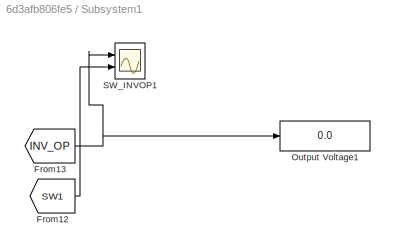
BLOCK [SubSystem] Subsystem1
  Ports = []
  RequestExecContextInheritance = off
BLOCK [From] Subsystem1/From12
  GotoTag = SW1
BLOCK [From] Subsystem1/From13
  GotoTag = INV_OP
BLOCK [Display] Subsystem1/Output Voltage1
  Decimation = 1
  Ports = [1]
BLOCK [Scope] Subsystem1/SW_INVOP1
  Floating = off
  NumInputPorts = 2
  Ports = [2]
  ScopeSpecificationString = Simulink.scopes.TimeScopeBlockCfg('CurrentConfiguration', extmgr.ConfigurationSet(extmgr.Configuration('Core','General UI',true),extmgr.Configuration('Core','Source UI',true),extmgr.Configuration('Sources','WiredSimulink',true,'DataLoggingVariableName','ScopeData6','DataLoggingSaveFormat','Array','DataLoggingDecimation','1','DataLoggingDecimateData',true),extmgr.Configuration('Visuals','Time Domai...<+2302ch>
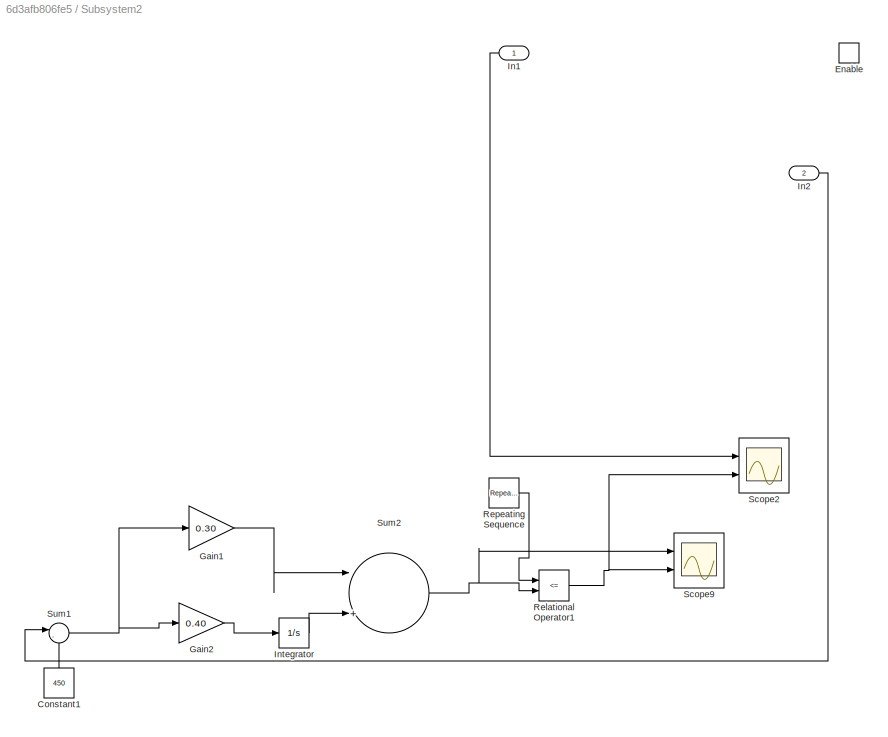
BLOCK [SubSystem] Subsystem2
  Ports = [2, 0, 1]
  RequestExecContextInheritance = off
BLOCK [Constant] Subsystem2/Constant1
  Value = 450
BLOCK [EnablePort] Subsystem2/Enable
  Ports = []
BLOCK [Gain] Subsystem2/Gain1
  Gain = 0.30
  OutDataTypeStr = Inherit: Inherit via internal rule
  ParamDataTypeStr = Inherit: Inherit via internal rule
  SaturateOnIntegerOverflow = off
BLOCK [Gain] Subsystem2/Gain2
  Gain = 0.40
  OutDataTypeStr = Inherit: Inherit via internal rule
  ParamDataTypeStr = Inherit: Inherit via internal rule
  SaturateOnIntegerOverflow = off
BLOCK [Inport] Subsystem2/In1
  IconDisplay = Port number
BLOCK [Inport] Subsystem2/In2
  IconDisplay = Port number
  Port = 2
BLOCK [Integrator] Subsystem2/Integrator
  Ports = [1, 1]
BLOCK [RelationalOperator] Subsystem2/Relational Operator1
  InputSameDT = off
  Operator = <=
  OutDataTypeStr = boolean
  Ports = [2, 1]
BLOCK [Reference] Subsystem2/Repeating Sequence  REF=simulink/Sources/Repeating
Sequence
  Ports = [0, 1]
  SourceBlock = simulink/Sources/Repeating\nSequence
  SourceProductBaseCode = SL
  SourceProductName = Simulink
  SourceType = Repeating table
BLOCK [Scope] Subsystem2/Scope2
  Floating = off
  NumInputPorts = 2
  Ports = [2]
  ScopeSpecificationString = Simulink.scopes.TimeScopeBlockCfg('CurrentConfiguration', extmgr.ConfigurationSet(extmgr.Configuration('Core','General UI',true),extmgr.Configuration('Core','Source UI',true),extmgr.Configuration('Sources','WiredSimulink',true,'DataLoggingVariableName','ScopeData3','DataLoggingSaveFormat','StructureWithTime','DataLoggingDecimation','1','DataLoggingDecimateData',true),extmgr.Configuration('Visuals'...<+2348ch>
BLOCK [Scope] Subsystem2/Scope9
  Floating = off
  NumInputPorts = 2
  Ports = [2]
  ScopeSpecificationString = Simulink.scopes.TimeScopeBlockCfg('CurrentConfiguration', extmgr.ConfigurationSet(extmgr.Configuration('Core','General UI',true),extmgr.Configuration('Core','Source UI',true),extmgr.Configuration('Sources','WiredSimulink',true,'DataLoggingVariableName','ScopeData2','DataLoggingSaveFormat','StructureWithTime','DataLoggingDecimation','1','DataLoggingDecimateData',true),extmgr.Configuration('Visuals'...<+2358ch>
BLOCK [Sum] Subsystem2/Sum1
  IconShape = round
  InputSameDT = off
  Inputs = |-+
  OutDataTypeStr = Inherit: Inherit via internal rule
  Ports = [2, 1]
  SaturateOnIntegerOverflow = off
BLOCK [Sum] Subsystem2/Sum2
  InputSameDT = off
  Inputs = |++
  OutDataTypeStr = Inherit: Inherit via internal rule
  Ports = [2, 1]
  SaturateOnIntegerOverflow = off
BLOCK [Sum] Sum
  IconShape = round
  InputSameDT = off
  Inputs = |+-
  OutDataTypeStr = Inherit: Inherit via internal rule
  Ports = [2, 1]
  SaturateOnIntegerOverflow = off
BLOCK [Sum] Sum1
  IconShape = round
  InputSameDT = off
  Inputs = |+-
  OutDataTypeStr = Inherit: Inherit via internal rule
  Ports = [2, 1]
  SaturateOnIntegerOverflow = off
BLOCK [Sum] Sum2
  IconShape = round
  InputSameDT = off
  Inputs = |+-
  OutDataTypeStr = Inherit: Inherit via internal rule
  Ports = [2, 1]
  SaturateOnIntegerOverflow = off
BLOCK [Reference] Voltage Measurement  REF=powerlib/Measurements/Voltage Measurement
  Ports = [0, 1, 0, 0, 0, 2]
  SourceBlock = powerlib/Measurements/Voltage Measurement
  SourceProductBaseCode = PS
  SourceProductName = Simscape Power Systems
  SourceType = Voltage Measurement
  UserDataPersistent = on
BLOCK [Reference] Voltage Measurement1  REF=powerlib/Measurements/Voltage Measurement
  Ports = [0, 1, 0, 0, 0, 2]
  SourceBlock = powerlib/Measurements/Voltage Measurement
  SourceProductBaseCode = PS
  SourceProductName = Simscape Power Systems
  SourceType = Voltage Measurement
  UserDataPersistent = on
BLOCK [Reference] Voltage Measurement2  REF=powerlib/Measurements/Voltage Measurement
  Ports = [0, 1, 0, 0, 0, 2]
  SourceBlock = powerlib/Measurements/Voltage Measurement
  SourceProductBaseCode = PS
  SourceProductName = Simscape Electrical
  SourceType = Voltage Measurement
  UserDataPersistent = on
BLOCK [Reference] Voltage Measurement3  REF=powerlib/Measurements/Voltage Measurement
  Ports = [0, 1, 0, 0, 0, 2]
  SourceBlock = powerlib/Measurements/Voltage Measurement
  SourceProductBaseCode = PS
  SourceProductName = Simscape Power Systems
  SourceType = Voltage Measurement
  UserDataPersistent = on
BLOCK [Reference] Voltage Measurement4  REF=powerlib/Measurements/Voltage Measurement
  Ports = [0, 1, 0, 0, 0, 2]
  SourceBlock = powerlib/Measurements/Voltage Measurement
  SourceProductBaseCode = PS
  SourceProductName = Simscape Electrical
  SourceType = Voltage Measurement
BLOCK [Reference] Voltage Measurement5  REF=powerlib/Measurements/Voltage Measurement
  Ports = [0, 1, 0, 0, 0, 2]
  SourceBlock = powerlib/Measurements/Voltage Measurement
  SourceProductBaseCode = PS
  SourceProductName = Simscape Electrical
  SourceType = Voltage Measurement
BLOCK [Reference] Voltage Measurement6  REF=powerlib/Measurements/Voltage Measurement
  Ports = [0, 1, 0, 0, 0, 2]
  SourceBlock = powerlib/Measurements/Voltage Measurement
  SourceProductBaseCode = PS
  SourceProductName = Simscape Electrical
  SourceType = Voltage Measurement
BLOCK [Reference] Voltage Measurement7  REF=powerlib/Measurements/Voltage Measurement
  Ports = [0, 1, 0, 0, 0, 2]
  SourceBlock = powerlib/Measurements/Voltage Measurement
  SourceProductBaseCode = PS
  SourceProductName = Simscape Electrical
  SourceType = Voltage Measurement
BLOCK [Reference] powergui  REF=powerlib/powergui
  Ports = []
  Priority = 1
  SourceBlock = powerlib/powergui
  SourceProductBaseCode = PS
  SourceProductName = Simscape Power Systems
  SourceType = PSB option menu block
BLOCK [Reference] powergui1  REF=powerlib/powergui
  Ports = []
  Priority = 1
  SourceBlock = powerlib/powergui
  SourceProductBaseCode = PS
  SourceProductName = Simscape Power Systems
  SourceType = PSB option menu block
ANNOTATION (root): OUTPUT COMPARED WITH SINE WAVE
ANNOTATION (root): LC FILTER SECTION
ANNOTATION (root): INVERTER
ANNOTATION (root): BIDIRECTIONAL CONVERETR FED INDUCTION MOTOR
ANNOTATION (root): BPFC RECTIFIER
ANNOTATION (root): DCDC CONVERTER
ANNOTATION (root): z
NET Asynchronous Machine SI Units:1 -> Bus Selector:1, Rotational Inertia:1, Rotational Inertia:2
NET Bus Selector:1 -> Scope3:1, Subsystem:1
LINE Bus Selector:2 -> Scope3:2
LINE Bus Selector:3 -> Scope3:3
NET Constant1:1 -> Sum1:2, Sum2:2
LINE Constant2:1 -> Asynchronous Machine SI Units:1
LINE Constant:1 -> Sum:1
LINE Current Measurement1:1 -> Goto6:1
NET Current Measurement:1 -> Goto2:1, Scope2:2
LINE From10:1 -> Product:2
LINE From11:1 -> Sum:2
NET From1:1 -> IGBT//Diode2:1, IGBT//Diode:1
LINE From2:1 -> SW_INVOP:2
LINE From3:1 -> Mosfet1:1
LINE From4:1 -> Mosfet:1
NET From5:1 -> Output Voltage:1, SW_INVOP:1
LINE From6:1 -> PULSE AND CLOSED LOOP:1
LINE From7:1 -> PULSE AND CLOSED LOOP:2
LINE From8:1 -> Gain:1
NET From9:1 -> Relational Operator1:1, Relational Operator:1
NET From:1 -> IGBT//Diode1:1, IGBT//Diode3:1
LINE Gain:1 -> Product:1
LINE Mux:1 -> Scope:1
LINE PID Controller:1 -> Goto9:1
LINE PULSE AND CLOSED LOOP/Gain1:1 -> PULSE AND CLOSED LOOP/Sum1:2
LINE PULSE AND CLOSED LOOP/Gain:1 -> PULSE AND CLOSED LOOP/Sum:2
LINE PULSE AND CLOSED LOOP/Inductor Current:1 -> PULSE AND CLOSED LOOP/Gain1:1
NET PULSE AND CLOSED LOOP/Logical Operator:1 -> PULSE AND CLOSED LOOP/SPWM2:1, PULSE AND CLOSED LOOP/SW_INVOP1:2
LINE PULSE AND CLOSED LOOP/Output Voltage :1 -> PULSE AND CLOSED LOOP/Gain:1
LINE PULSE AND CLOSED LOOP/PID Controller1:1 -> PULSE AND CLOSED LOOP/Sum2:1
LINE PULSE AND CLOSED LOOP/PID Controller:1 -> PULSE AND CLOSED LOOP/Sum1:1
NET PULSE AND CLOSED LOOP/Relay:1 -> PULSE AND CLOSED LOOP/Logical Operator:1, PULSE AND CLOSED LOOP/SPWM1:1, PULSE AND CLOSED LOOP/SW_INVOP1:1
LINE PULSE AND CLOSED LOOP/Repeating Sequence:1 -> PULSE AND CLOSED LOOP/Sum2:2
LINE PULSE AND CLOSED LOOP/Sine Wave:1 -> PULSE AND CLOSED LOOP/Sum:1
NET PULSE AND CLOSED LOOP/Sum1:1 -> PULSE AND CLOSED LOOP/PID Controller1:1, PULSE AND CLOSED LOOP/SW_INVOP2:2
NET PULSE AND CLOSED LOOP/Sum2:1 -> PULSE AND CLOSED LOOP/Relay:1, PULSE AND CLOSED LOOP/SW_INVOP2:1
LINE PULSE AND CLOSED LOOP/Sum:1 -> PULSE AND CLOSED LOOP/PID Controller:1
LINE PULSE AND CLOSED LOOP:1 -> Goto4:1
LINE PULSE AND CLOSED LOOP:2 -> Goto3:1
NET Product:1 -> Sum1:1, Sum2:1
NET Pulse Generator10:1 -> Mosfet11:1, Mosfet13:1
NET Pulse Generator11:1 -> Mosfet10:1, Mosfet12:1, Subsystem2:1
NET Pulse Generator1:1 -> Mosfet3:1, Mosfet4:1, Scope6:2
NET Pulse Generator2:1 -> IGBT//Diode5:1, Scope5:1
NET Pulse Generator3:1 -> IGBT//Diode4:1, Scope5:4
NET Pulse Generator4:1 -> IGBT//Diode9:1, Scope5:2
NET Pulse Generator5:1 -> IGBT//Diode8:1, Scope5:5
NET Pulse Generator6:1 -> IGBT//Diode7:1, Scope5:3
NET Pulse Generator7:1 -> IGBT//Diode6:1, Scope5:6
NET Pulse Generator8:1 -> Mosfet6:1, Mosfet9:1
NET Pulse Generator9:1 -> Mosfet7:1, Mosfet8:1
NET Pulse Generator:1 -> Mosfet2:1, Mosfet5:1, Scope6:1
LINE Relational Operator1:1 -> S-R Flip-Flop:1
LINE Relational Operator:1 -> S-R Flip-Flop:2
LINE Rotational Inertia:1 -> Scope7:1
NET S-R Flip-Flop:1 -> Goto7:1, Scope1:1
NET S-R Flip-Flop:2 -> Goto8:1, Scope1:2
LINE Step1:1 -> Ideal Switch1:1
LINE Step:1 -> Ideal Switch:1
LINE Subsystem/<Rotor speed (wm)>:1 -> Subsystem/Product1:2
LINE Subsystem/Constant3:1 -> Subsystem/Product1:1
LINE Subsystem/From14:1 -> Subsystem/PULSE AND CLOSED LOOP1:1
LINE Subsystem/From15:1 -> Subsystem/PULSE AND CLOSED LOOP1:2
LINE Subsystem/PULSE AND CLOSED LOOP1/Gain1:1 -> Subsystem/PULSE AND CLOSED LOOP1/Sum1:2
LINE Subsystem/PULSE AND CLOSED LOOP1/Gain:1 -> Subsystem/PULSE AND CLOSED LOOP1/Sum:2
LINE Subsystem/PULSE AND CLOSED LOOP1/Inductor Current:1 -> Subsystem/PULSE AND CLOSED LOOP1/Gain1:1
NET Subsystem/PULSE AND CLOSED LOOP1/Logical Operator:1 -> Subsystem/PULSE AND CLOSED LOOP1/SPWM2:1, Subsystem/PULSE AND CLOSED LOOP1/SW_INVOP1:2
LINE Subsystem/PULSE AND CLOSED LOOP1/Output Voltage :1 -> Subsystem/PULSE AND CLOSED LOOP1/Gain:1
LINE Subsystem/PULSE AND CLOSED LOOP1/PID Controller1:1 -> Subsystem/PULSE AND CLOSED LOOP1/Sum2:1
LINE Subsystem/PULSE AND CLOSED LOOP1/PID Controller:1 -> Subsystem/PULSE AND CLOSED LOOP1/Sum1:1
NET Subsystem/PULSE AND CLOSED LOOP1/Relay:1 -> Subsystem/PULSE AND CLOSED LOOP1/Logical Operator:1, Subsystem/PULSE AND CLOSED LOOP1/SPWM1:1, Subsystem/PULSE AND CLOSED LOOP1/SW_INVOP1:1
LINE Subsystem/PULSE AND CLOSED LOOP1/Repeating Sequence:1 -> Subsystem/PULSE AND CLOSED LOOP1/Sum2:2
LINE Subsystem/PULSE AND CLOSED LOOP1/Sine Wave:1 -> Subsystem/PULSE AND CLOSED LOOP1/Sum:1
NET Subsystem/PULSE AND CLOSED LOOP1/Sum1:1 -> Subsystem/PULSE AND CLOSED LOOP1/PID Controller1:1, Subsystem/PULSE AND CLOSED LOOP1/SW_INVOP2:2
NET Subsystem/PULSE AND CLOSED LOOP1/Sum2:1 -> Subsystem/PULSE AND CLOSED LOOP1/Relay:1, Subsystem/PULSE AND CLOSED LOOP1/SW_INVOP2:1
LINE Subsystem/PULSE AND CLOSED LOOP1/Sum:1 -> Subsystem/PULSE AND CLOSED LOOP1/PID Controller:1
LINE Subsystem/PULSE AND CLOSED LOOP1:1 -> Subsystem/Goto11:1
LINE Subsystem/PULSE AND CLOSED LOOP1:2 -> Subsystem/Goto10:1
LINE Subsystem/Product1:1 -> Subsystem/Out1:1
LINE Subsystem1/From12:1 -> Subsystem1/SW_INVOP1:2
NET Subsystem1/From13:1 -> Subsystem1/Output Voltage1:1, Subsystem1/SW_INVOP1:1
LINE Subsystem2/Constant1:1 -> Subsystem2/Sum1:2
LINE Subsystem2/Gain1:1 -> Subsystem2/Sum2:1
LINE Subsystem2/Gain2:1 -> Subsystem2/Integrator:1
LINE Subsystem2/In1:1 -> Subsystem2/Scope2:1
LINE Subsystem2/In2:1 -> Subsystem2/Sum1:1
LINE Subsystem2/Integrator:1 -> Subsystem2/Sum2:2
NET Subsystem2/Relational Operator1:1 -> Subsystem2/Scope2:2, Subsystem2/Scope9:2
LINE Subsystem2/Repeating Sequence:1 -> Subsystem2/Relational Operator1:1
NET Subsystem2/Sum1:1 -> Subsystem2/Gain1:1, Subsystem2/Gain2:1
NET Subsystem2/Sum2:1 -> Subsystem2/Relational Operator1:2, Subsystem2/Scope9:1
LINE Sum1:1 -> Relational Operator:2
LINE Sum2:1 -> Relational Operator1:2
LINE Sum:1 -> PID Controller:1
LINE Voltage Measurement1:1 -> Goto1:1
LINE Voltage Measurement2:1 -> Scope4:2
NET Voltage Measurement3:1 -> Goto5:1, INV O//P:1
LINE Voltage Measurement4:1 -> Scope4:1
NET Voltage Measurement5:1 -> Mux:1, Subsystem2:2
LINE Voltage Measurement6:1 -> Scope8:1
LINE Voltage Measurement7:1 -> Mux:2
NET Voltage Measurement:1 -> Goto:1, Scope2:1
PNET net1: AC Voltage Source:LConn1 -- Series RLC Branch3:LConn1 -- Voltage Measurement:LConn2
PNET net2: AC Voltage Source:RConn1 -- Current Measurement:LConn1 -- Voltage Measurement:LConn1
PNET net3: Asynchronous Machine SI Units:LConn1 -- IGBT//Diode4:LConn1 -- IGBT//Diode5:RConn1
PNET net4: Asynchronous Machine SI Units:LConn2 -- IGBT//Diode8:LConn1 -- IGBT//Diode9:RConn1
PNET net5: Asynchronous Machine SI Units:LConn3 -- IGBT//Diode6:LConn1 -- IGBT//Diode7:RConn1
PNET net6: Current Measurement1:LConn1 -- IGBT//Diode1:LConn1 -- IGBT//Diode:RConn1
PLINE Current Measurement1:RConn1 -- Series RLC Branch8:RConn1
PLINE Current Measurement:RConn1 -- Series RLC Branch4:LConn1
PNET net7: DC Voltage Source1:LConn1 -- DC Voltage Source2:LConn1 -- Mosfet1:RConn1 -- Mosfet4:RConn1 -- Mosfet5:RConn1 -- Mosfet8:RConn1 -- Mosfet9:RConn1 -- Mosfet:RConn1 -- Series RLC Branch2:RConn1 -- Series RLC Branch:RConn1 -- Voltage Measurement1:LConn2 -- Voltage Measurement4:LConn2 -- Voltage Measurement7:LConn2
PNET net8: DC Voltage Source1:RConn1 -- Diode1:RConn1 -- Diode2:RConn1 -- Ideal Switch1:RConn1 -- Mosfet2:LConn1 -- Mosfet3:LConn1 -- Series RLC Branch2:LConn1 -- Series RLC Branch:LConn1 -- Voltage Measurement1:LConn1 -- Voltage Measurement4:LConn1 -- Voltage Measurement7:LConn1
PLINE DC Voltage Source2:RConn1 -- Ideal Switch:RConn1
PNET net9: DC Voltage Source:LConn1 -- Diode5:LConn1 -- Diode6:LConn1 -- IGBT//Diode1:RConn1 -- IGBT//Diode2:RConn1 -- Series RLC Branch1:RConn1 -- Series RLC Branch5:RConn1 -- Voltage Measurement2:LConn2
PNET net10: DC Voltage Source:RConn1 -- Diode7:RConn1 -- Diode:RConn1 -- IGBT//Diode3:LConn1 -- IGBT//Diode:LConn1 -- Series RLC Branch1:LConn1 -- Series RLC Branch5:LConn1 -- Voltage Measurement2:LConn1
PNET net11: Diode1:LConn1 -- Mosfet1:LConn1 -- Series RLC Branch3:RConn1
PNET net12: Diode2:LConn1 -- Mosfet:LConn1 -- Series RLC Branch4:RConn1
PNET net13: Diode5:RConn1 -- Diode:LConn1 -- Linear Transformer:RConn1
PNET net14: Diode6:RConn1 -- Diode7:LConn1 -- Linear Transformer:RConn2
PNET net15: IGBT//Diode2:LConn1 -- IGBT//Diode3:RConn1 -- Series RLC Branch6:RConn1 -- Series RLC Branch7:RConn1 -- Voltage Measurement3:LConn2
PNET net16: IGBT//Diode4:RConn1 -- IGBT//Diode6:RConn1 -- IGBT//Diode8:RConn1 -- Mosfet11:RConn1 -- Mosfet12:RConn1 -- Series RLC Branch10:RConn1 -- Series RLC Branch9:RConn1 -- Voltage Measurement5:LConn2
PNET net17: IGBT//Diode5:LConn1 -- IGBT//Diode7:LConn1 -- IGBT//Diode9:LConn1 -- Mosfet10:LConn1 -- Mosfet13:LConn1 -- Series RLC Branch10:LConn1 -- Series RLC Branch9:LConn1 -- Voltage Measurement5:LConn1
PNET net18: Ideal Switch1:LConn1 -- Ideal Switch:LConn1 -- Mosfet6:LConn1 -- Mosfet7:LConn1
PNET net19: Linear Transformer1:LConn1 -- Mosfet6:RConn1 -- Mosfet8:LConn1
PNET net20: Linear Transformer1:LConn2 -- Mosfet7:RConn1 -- Mosfet9:LConn1
PNET net21: Linear Transformer1:RConn1 -- Mosfet10:RConn1 -- Mosfet11:LConn1 -- Voltage Measurement6:LConn1
PNET net22: Linear Transformer1:RConn2 -- Mosfet12:LConn1 -- Mosfet13:RConn1 -- Voltage Measurement6:LConn2
PNET net23: Linear Transformer:LConn1 -- Mosfet2:RConn1 -- Mosfet4:LConn1
PNET net24: Linear Transformer:LConn2 -- Mosfet3:RConn1 -- Mosfet5:LConn1
PNET net25: Series RLC Branch6:LConn1 -- Series RLC Branch7:LConn1 -- Series RLC Branch8:LConn1 -- Voltage Measurement3:LConn1
note: NET lines group one-source signal fan-out (src -> all destinations, sorted); 1:1 wires keep LINE; PNET lines group multi-terminal physical nets as a canonical sorted terminal list (undirected conserving connections); 2-terminal nets keep the pairwise PLINE form
